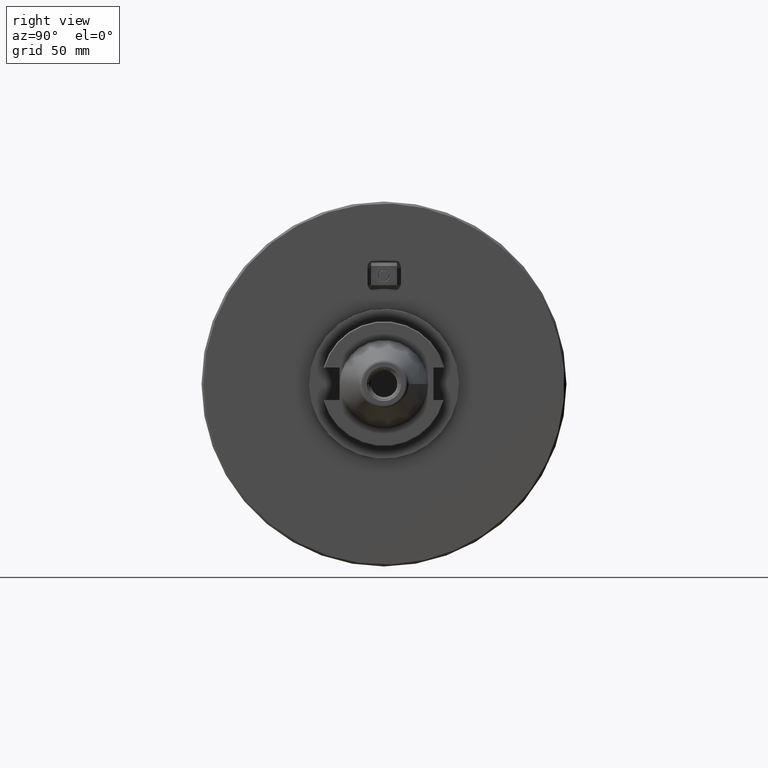
[diagram: clean part render]
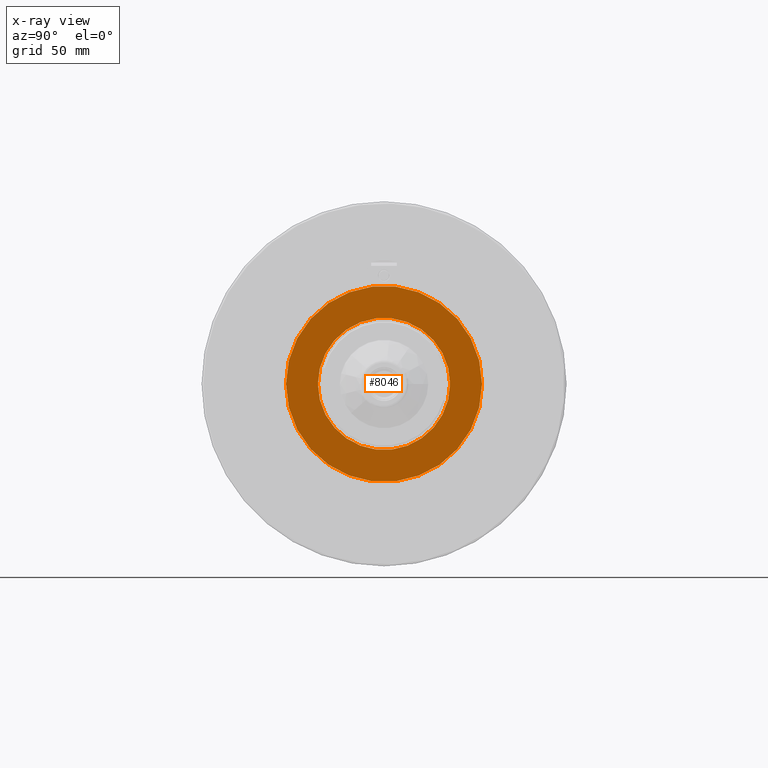
[diagram: x-ray — body ghosted, one internal face saturated and labeled with its STEP entity id]
A machine part, right view, then the same camera in x-ray: the body is ghosted and one INTERNAL B-rep face — a face not visible from any outside direction — is saturated and labeled: STEP entity #8046.
In plain terms, the highlighted planar face has unit normal (1, 0, 0).
Its self-contained STEP definition (entity closure, byte-faithful):
#273=FACE_BOUND('',#1933,.T.);
#891=CIRCLE('',#8923,1.95669374592958);
#892=CIRCLE('',#8925,1.31889687458622);
#1378=FACE_OUTER_BOUND('',#1932,.T.);
#1932=EDGE_LOOP('',(#7086));
#1933=EDGE_LOOP('',(#7087));
#3801=VERTEX_POINT('',#14258);
#3802=VERTEX_POINT('',#14262);
#4911=EDGE_CURVE('',#3801,#3801,#891,.T.);
#4912=EDGE_CURVE('',#3802,#3802,#892,.T.);
#7086=ORIENTED_EDGE('',*,*,#4911,.T.);
#7087=ORIENTED_EDGE('',*,*,#4912,.T.);
#7603=PLANE('',#8924);
#8046=ADVANCED_FACE('',(#1378,#273),#7603,.F.);
#8923=AXIS2_PLACEMENT_3D('',#14260,#11060,#11061);
#8924=AXIS2_PLACEMENT_3D('',#14261,#11062,#11063);
#8925=AXIS2_PLACEMENT_3D('',#14263,#11064,#11065);
#11060=DIRECTION('center_axis',(1.,0.,0.));
#11061=DIRECTION('ref_axis',(0.,0.,-1.));
#11062=DIRECTION('center_axis',(-1.,0.,0.));
#11063=DIRECTION('ref_axis',(0.,0.,1.));
#11064=DIRECTION('center_axis',(-1.,0.,0.));
#11065=DIRECTION('ref_axis',(0.,0.,-1.));
#14258=CARTESIAN_POINT('',(-0.511811023622047,1.35273345144675E-14,1.95669374592958));
#14260=CARTESIAN_POINT('Origin',(-0.511811023622047,1.32877086411811E-14,
-6.43404839467716E-15));
#14261=CARTESIAN_POINT('Origin',(-0.511811023622047,1.71751968503937,0.));
#14262=CARTESIAN_POINT('',(-0.511811070478347,0.,1.31889687458622));
#14263=CARTESIAN_POINT('Origin',(-0.511811070478347,-3.77650666644134E-15,
2.23792987640984E-15));